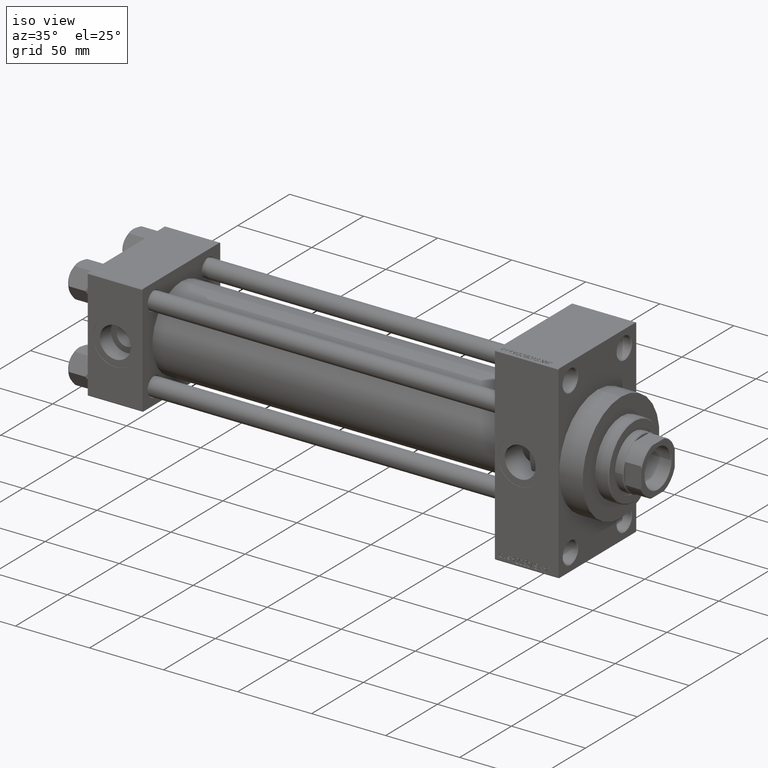
[diagram: clean part render]
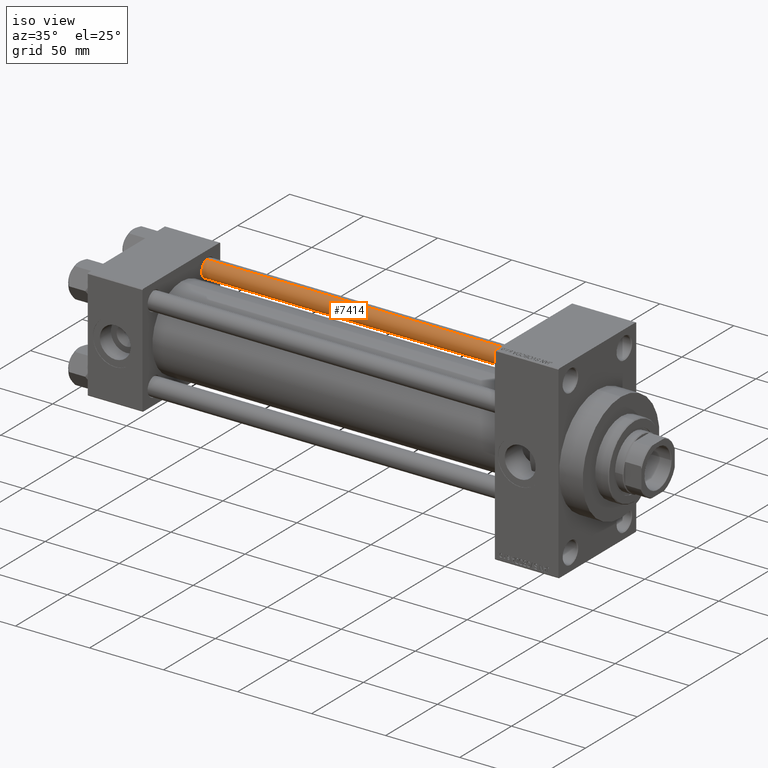
[diagram: same view with one face highlighted and labeled with its STEP entity id]
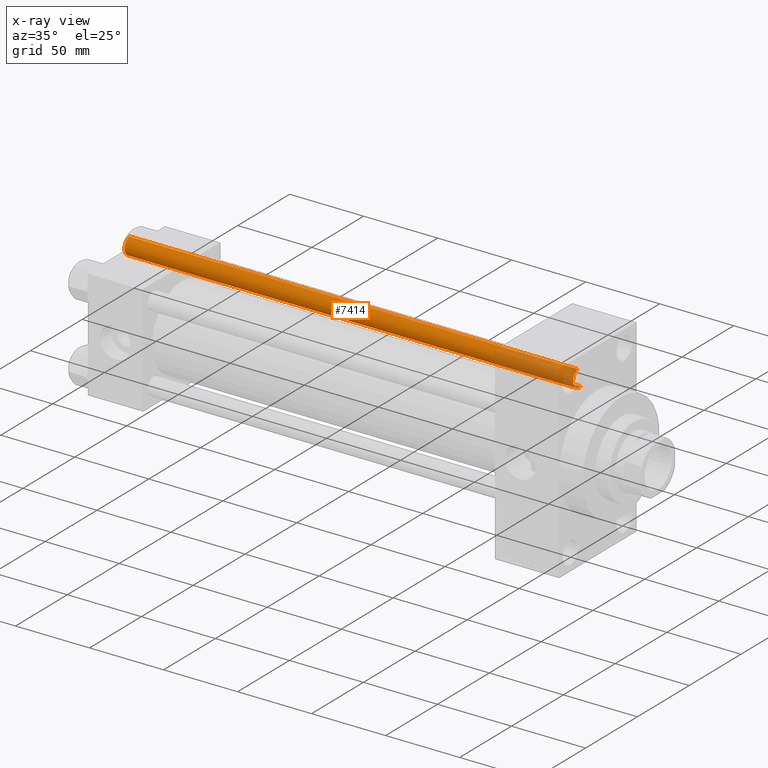
[diagram: x-ray of the same camera — body ghosted, the highlighted face saturated]
A machine part, iso view. The second image highlights one B-rep face of the part: STEP entity #7414.
The next image is the same camera in x-ray: the body ghosted, the highlighted face saturated — about 18% of this face is hidden behind the body in this view.
In plain terms, the highlighted cylindrical surface (edge-blend (fillet) strip) has radius 6 mm, axis along (-1, -0, 0).
Its self-contained STEP definition (entity closure, byte-faithful):
#1091 = EDGE_CURVE ( 'NONE', #46357, #47926, #37029, .T. ) ;
#2417 = EDGE_LOOP ( 'NONE', ( #37334, #39787, #29029, #35782 ) ) ;
#2585 = DIRECTION ( 'NONE',  ( 0.000000000000000000, 0.000000000000000000, -1.000000000000000000 ) ) ;
#2901 = DIRECTION ( 'NONE',  ( -0.000000000000000000, -0.000000000000000000, 1.000000000000000000 ) ) ;
#3768 = VERTEX_POINT ( 'NONE', #19202 ) ;
#5596 = DIRECTION ( 'NONE',  ( -0.000000000000000000, -0.000000000000000000, -1.000000000000000000 ) ) ;
#7402 = CARTESIAN_POINT ( 'NONE',  ( 6.000000000000000888, 7.347880794884120722E-16, 0.4999999999999449329 ) ) ;
#7414 = ADVANCED_FACE ( 'NONE', ( #39718 ), #47450, .T. ) ;
#13214 = CARTESIAN_POINT ( 'NONE',  ( 6.000000000000000888, 7.347880794884120722E-16, 304.0000000000000000 ) ) ;
#13413 = DIRECTION ( 'NONE',  ( 1.000000000000000000, 0.000000000000000000, 0.000000000000000000 ) ) ;
#15938 = CARTESIAN_POINT ( 'NONE',  ( 6.000000000000000888, 7.347880794884120722E-16, 303.5000000000000000 ) ) ;
#17164 = AXIS2_PLACEMENT_3D ( 'NONE', #37039, #2901, #13413 ) ;
#17799 = CARTESIAN_POINT ( 'NONE',  ( 0.000000000000000000, 0.000000000000000000, 303.5000000000000000 ) ) ;
#19202 = CARTESIAN_POINT ( 'NONE',  ( -6.000000000000000888, 0.000000000000000000, 303.5000000000000000 ) ) ;
#19943 = DIRECTION ( 'NONE',  ( -0.000000000000000000, -0.000000000000000000, -1.000000000000000000 ) ) ;
#20293 = CARTESIAN_POINT ( 'NONE',  ( 0.000000000000000000, 0.000000000000000000, 304.0000000000000000 ) ) ;
#21718 = CIRCLE ( 'NONE', #24894, 6.000000000000000888 ) ;
#24674 = VECTOR ( 'NONE', #19943, 1000.000000000000000 ) ;
#24894 = AXIS2_PLACEMENT_3D ( 'NONE', #17799, #2585, #32987 ) ;
#27541 = DIRECTION ( 'NONE',  ( -0.000000000000000000, -0.000000000000000000, -1.000000000000000000 ) ) ;
#28988 = EDGE_CURVE ( 'NONE', #39435, #3768, #21718, .T. ) ;
#29029 = ORIENTED_EDGE ( 'NONE', *, *, #40359, .T. ) ;
#32987 = DIRECTION ( 'NONE',  ( 1.000000000000000000, 0.000000000000000000, 0.000000000000000000 ) ) ;
#33923 = CARTESIAN_POINT ( 'NONE',  ( -6.000000000000000888, 0.000000000000000000, 0.4999999999999449329 ) ) ;
#34995 = LINE ( 'NONE', #35489, #36273 ) ;
#35489 = CARTESIAN_POINT ( 'NONE',  ( -6.000000000000000888, 0.000000000000000000, 304.0000000000000000 ) ) ;
#35718 = DIRECTION ( 'NONE',  ( -1.000000000000000000, 0.000000000000000000, 0.000000000000000000 ) ) ;
#35782 = ORIENTED_EDGE ( 'NONE', *, *, #1091, .T. ) ;
#36273 = VECTOR ( 'NONE', #27541, 1000.000000000000000 ) ;
#37029 = CIRCLE ( 'NONE', #17164, 6.000000000000000888 ) ;
#37039 = CARTESIAN_POINT ( 'NONE',  ( 0.000000000000000000, 0.000000000000000000, 0.4999999999999449329 ) ) ;
#37334 = ORIENTED_EDGE ( 'NONE', *, *, #48808, .F. ) ;
#38346 = AXIS2_PLACEMENT_3D ( 'NONE', #20293, #5596, #35718 ) ;
#38868 = LINE ( 'NONE', #13214, #24674 ) ;
#39435 = VERTEX_POINT ( 'NONE', #15938 ) ;
#39718 = FACE_OUTER_BOUND ( 'NONE', #2417, .T. ) ;
#39787 = ORIENTED_EDGE ( 'NONE', *, *, #28988, .T. ) ;
#40359 = EDGE_CURVE ( 'NONE', #3768, #46357, #34995, .T. ) ;
#46357 = VERTEX_POINT ( 'NONE', #33923 ) ;
#47450 = CYLINDRICAL_SURFACE ( 'NONE', #38346, 6.000000000000000888 ) ;
#47926 = VERTEX_POINT ( 'NONE', #7402 ) ;
#48808 = EDGE_CURVE ( 'NONE', #39435, #47926, #38868, .T. ) ;